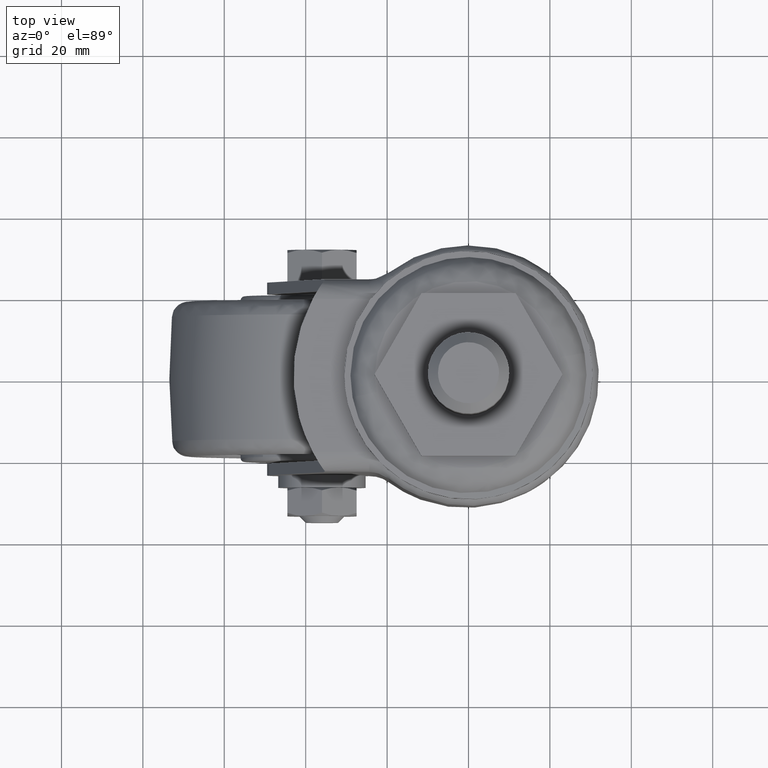
[diagram: clean part render]
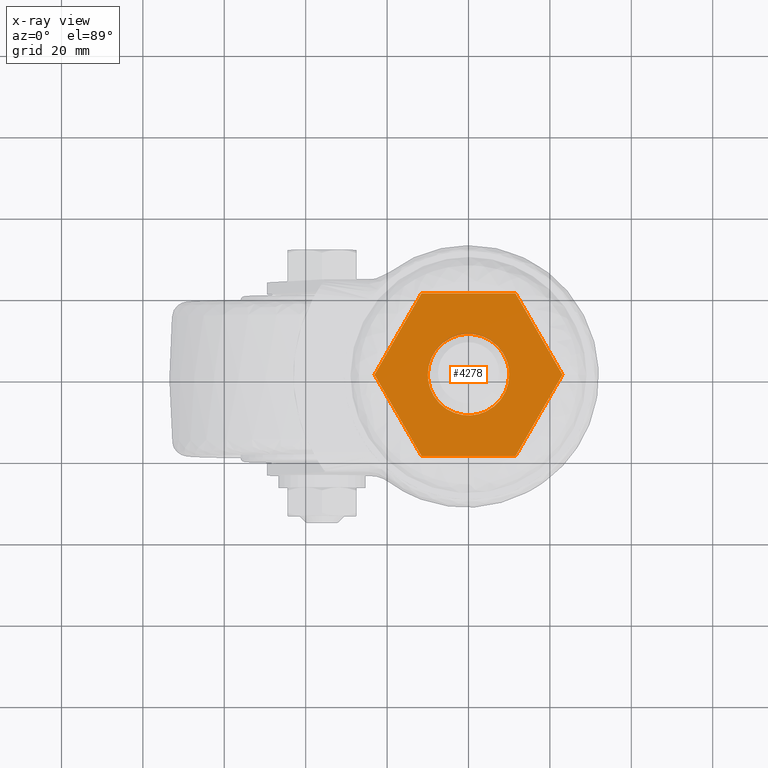
[diagram: x-ray — body ghosted, one internal face saturated and labeled with its STEP entity id]
A machine part, top view, then the same camera in x-ray: the body is ghosted and one INTERNAL B-rep face — a face not visible from any outside direction — is saturated and labeled: STEP entity #4278.
In plain terms, the highlighted face is a freeform B-spline surface patch.
Its self-contained STEP definition (entity closure, byte-faithful):
#3787=CARTESIAN_POINT('',(11.547005000000100,-20.0,0.0));
#3788=VERTEX_POINT('',#3787);
#3794=CARTESIAN_POINT('',(23.094010000000001,0.0,0.0));
#3795=VERTEX_POINT('',#3794);
#3796=CARTESIAN_POINT('',(11.547005000000100,-20.0,0.0));
#3797=CARTESIAN_POINT('',(23.094010000000001,0.0,0.0));
#3798=QUASI_UNIFORM_CURVE('',1,(#3796,#3797),.UNSPECIFIED.,.F.,.U.);
#3799=EDGE_CURVE('',#3788,#3795,#3798,.T.);
#3815=CARTESIAN_POINT('',(-11.547006000000099,-20.0,0.0));
#3816=VERTEX_POINT('',#3815);
#3822=CARTESIAN_POINT('',(-11.547006000000099,-20.0,0.0));
#3823=CARTESIAN_POINT('',(11.547005000000100,-20.0,0.0));
#3824=QUASI_UNIFORM_CURVE('',1,(#3822,#3823),.UNSPECIFIED.,.F.,.U.);
#3825=EDGE_CURVE('',#3816,#3788,#3824,.T.);
#3837=CARTESIAN_POINT('',(-23.094011000000101,0.0,0.0));
#3838=VERTEX_POINT('',#3837);
#3844=CARTESIAN_POINT('',(-23.094011000000101,0.0,0.0));
#3845=CARTESIAN_POINT('',(-11.547006000000099,-20.0,0.0));
#3846=QUASI_UNIFORM_CURVE('',1,(#3844,#3845),.UNSPECIFIED.,.F.,.U.);
#3847=EDGE_CURVE('',#3838,#3816,#3846,.T.);
#3859=CARTESIAN_POINT('',(-11.547006000000099,20.0,0.0));
#3860=VERTEX_POINT('',#3859);
#3866=CARTESIAN_POINT('',(-11.547006000000099,20.0,0.0));
#3867=CARTESIAN_POINT('',(-23.094011000000101,0.0,0.0));
#3868=QUASI_UNIFORM_CURVE('',1,(#3866,#3867),.UNSPECIFIED.,.F.,.U.);
#3869=EDGE_CURVE('',#3860,#3838,#3868,.T.);
#3881=CARTESIAN_POINT('',(11.547005000000100,20.0,0.0));
#3882=VERTEX_POINT('',#3881);
#3888=CARTESIAN_POINT('',(11.547005000000100,20.0,0.0));
#3889=CARTESIAN_POINT('',(-11.547006000000099,20.0,0.0));
#3890=QUASI_UNIFORM_CURVE('',1,(#3888,#3889),.UNSPECIFIED.,.F.,.U.);
#3891=EDGE_CURVE('',#3882,#3860,#3890,.T.);
#3904=CARTESIAN_POINT('',(23.094010000000001,0.0,0.0));
#3905=CARTESIAN_POINT('',(11.547005000000100,20.0,0.0));
#3906=QUASI_UNIFORM_CURVE('',1,(#3904,#3905),.UNSPECIFIED.,.F.,.U.);
#3907=EDGE_CURVE('',#3795,#3882,#3906,.T.);
#4199=CARTESIAN_POINT('',(-25.401102559428761,-21.997999922472239,0.0));
#4200=CARTESIAN_POINT('',(25.401102798287919,-21.997999922472239,0.0));
#4201=CARTESIAN_POINT('',(-25.401102559428761,21.998000995355849,0.0));
#4202=CARTESIAN_POINT('',(25.401102798287919,21.998000995355849,0.0));
#4203=B_SPLINE_SURFACE_WITH_KNOTS('',1,1,((#4199,#4201),(#4200,#4202)),.UNSPECIFIED.,.F.,.F.,.U.,(2,2),(2,2),(0.0,50.802205357716680),(0.0,43.996000917828091),.UNSPECIFIED.);
#4204=ORIENTED_EDGE('',*,*,#3907,.F.);
#4205=ORIENTED_EDGE('',*,*,#3799,.F.);
#4206=ORIENTED_EDGE('',*,*,#3825,.F.);
#4207=ORIENTED_EDGE('',*,*,#3847,.F.);
#4208=ORIENTED_EDGE('',*,*,#3869,.F.);
#4209=ORIENTED_EDGE('',*,*,#3891,.F.);
#4210=EDGE_LOOP('',(#4204,#4205,#4206,#4207,#4208,#4209));
#4211=FACE_OUTER_BOUND('',#4210,.T.);
#4212=CARTESIAN_POINT('',(10.0,0.0,0.0));
#4213=VERTEX_POINT('',#4212);
#4214=CARTESIAN_POINT('',(0.610485395456382,-9.981347984212075,5.273559E-016));
#4215=VERTEX_POINT('',#4214);
#4216=CARTESIAN_POINT('',(10.0,0.0,0.0));
#4217=CARTESIAN_POINT('',(10.0,-9.407060668955149,0.0));
#4218=CARTESIAN_POINT('',(0.610485395456383,-9.981347984212077,0.0));
#4226=(BOUNDED_CURVE()B_SPLINE_CURVE(2,(#4216,#4217,#4218),.UNSPECIFIED.,.F.,.U.)B_SPLINE_CURVE_WITH_KNOTS((3,3),(0.0,0.239332962240105),.UNSPECIFIED.)CURVE()GEOMETRIC_REPRESENTATION_ITEM()RATIONAL_B_SPLINE_CURVE((1.0,0.719603993285349,0.976072041669207))REPRESENTATION_ITEM(''));
#4227=EDGE_CURVE('',#4213,#4215,#4226,.T.);
#4228=ORIENTED_EDGE('',*,*,#4227,.F.);
#4229=CARTESIAN_POINT('',(-0.610485395456384,9.981347984212075,5.273559E-016));
#4230=VERTEX_POINT('',#4229);
#4231=CARTESIAN_POINT('',(-0.610485395456386,9.981347984212075,0.0));
#4232=CARTESIAN_POINT('',(-0.305527633039949,10.0,0.0));
#4233=CARTESIAN_POINT('',(0.0,10.0,0.0));
#4234=CARTESIAN_POINT('',(10.000000000000002,10.000000000000002,0.0));
#4235=CARTESIAN_POINT('',(10.0,0.0,0.0));
#4243=(BOUNDED_CURVE()B_SPLINE_CURVE(2,(#4231,#4232,#4233,#4234,#4235),.UNSPECIFIED.,.F.,.U.)B_SPLINE_CURVE_WITH_KNOTS((3,2,3),(0.739332962240104,0.750000000000000,1.0),.UNSPECIFIED.)CURVE()GEOMETRIC_REPRESENTATION_ITEM()RATIONAL_B_SPLINE_CURVE((0.976072041669207,0.987502787901198,1.0,0.707106781186548,1.0))REPRESENTATION_ITEM(''));
#4244=EDGE_CURVE('',#4230,#4213,#4243,.T.);
#4245=ORIENTED_EDGE('',*,*,#4244,.F.);
#4246=CARTESIAN_POINT('',(-10.0,0.0,0.0));
#4247=VERTEX_POINT('',#4246);
#4248=CARTESIAN_POINT('',(-10.0,0.0,0.0));
#4249=CARTESIAN_POINT('',(-10.0,9.407060668955145,0.0));
#4250=CARTESIAN_POINT('',(-0.610485395456386,9.981347984212075,0.0));
#4258=(BOUNDED_CURVE()B_SPLINE_CURVE(2,(#4248,#4249,#4250),.UNSPECIFIED.,.F.,.U.)B_SPLINE_CURVE_WITH_KNOTS((3,3),(0.500000000000000,0.739332962240104),.UNSPECIFIED.)CURVE()GEOMETRIC_REPRESENTATION_ITEM()RATIONAL_B_SPLINE_CURVE((1.0,0.719603993285349,0.976072041669207))REPRESENTATION_ITEM(''));
#4259=EDGE_CURVE('',#4247,#4230,#4258,.T.);
#4260=ORIENTED_EDGE('',*,*,#4259,.F.);
#4261=CARTESIAN_POINT('',(0.610485395456383,-9.981347984212077,0.0));
#4262=CARTESIAN_POINT('',(0.305527633039947,-10.000000000000002,0.0));
#4263=CARTESIAN_POINT('',(0.0,-10.0,0.0));
#4264=CARTESIAN_POINT('',(-10.000000000000002,-10.000000000000002,0.0));
#4265=CARTESIAN_POINT('',(-10.0,0.0,0.0));
#4273=(BOUNDED_CURVE()B_SPLINE_CURVE(2,(#4261,#4262,#4263,#4264,#4265),.UNSPECIFIED.,.F.,.U.)B_SPLINE_CURVE_WITH_KNOTS((3,2,3),(0.239332962240105,0.250000000000000,0.500000000000000),.UNSPECIFIED.)CURVE()GEOMETRIC_REPRESENTATION_ITEM()RATIONAL_B_SPLINE_CURVE((0.976072041669207,0.987502787901198,1.0,0.707106781186548,1.0))REPRESENTATION_ITEM(''));
#4274=EDGE_CURVE('',#4215,#4247,#4273,.T.);
#4275=ORIENTED_EDGE('',*,*,#4274,.F.);
#4276=EDGE_LOOP('',(#4228,#4245,#4260,#4275));
#4277=FACE_BOUND('',#4276,.T.);
#4278=ADVANCED_FACE('',(#4211,#4277),#4203,.F.);